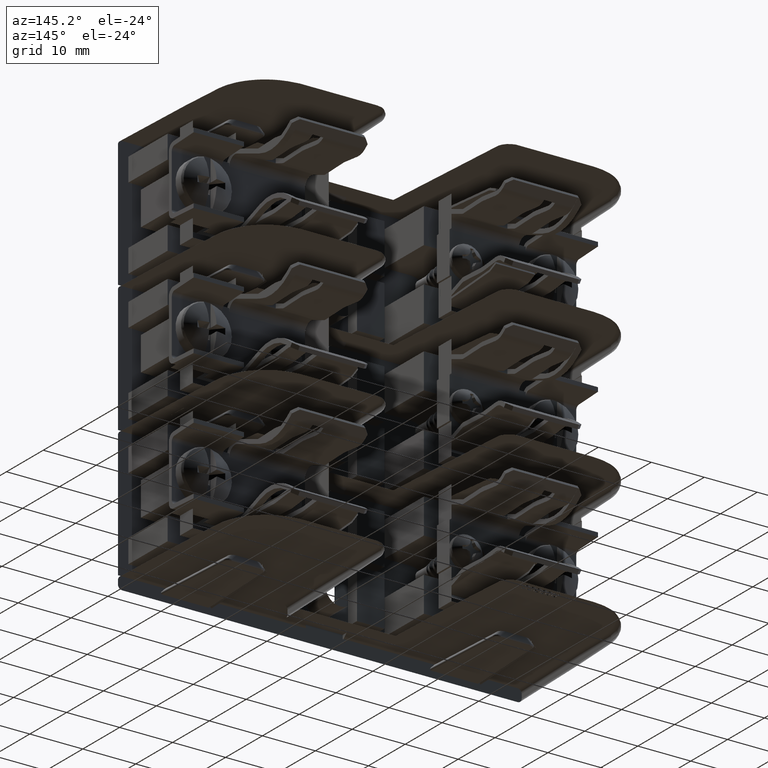
[diagram: clean part render]
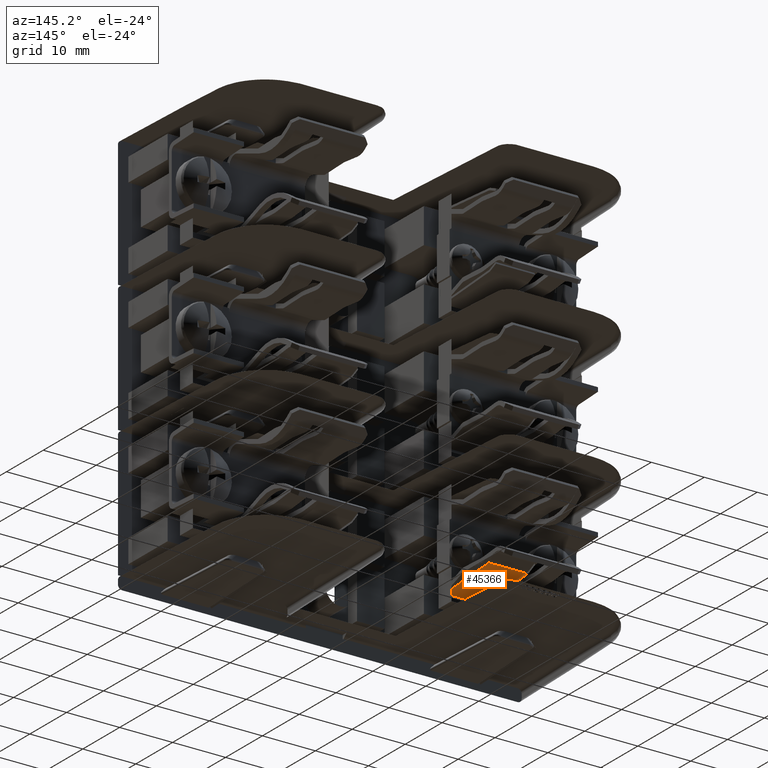
[diagram: same view with one face highlighted and labeled with its STEP entity id]
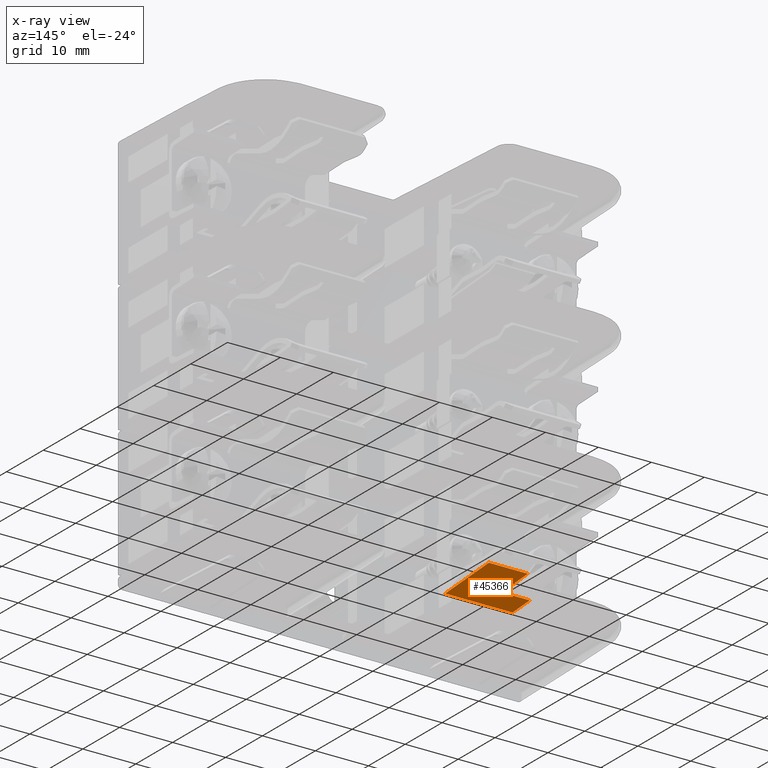
[diagram: x-ray of the same camera — body ghosted, the highlighted face saturated]
A machine part, auxiliary view. The second image highlights one B-rep face of the part: STEP entity #45366.
The next image is the same camera in x-ray: the body ghosted, the highlighted face saturated — about 4% of this face is hidden behind the body in this view.
In plain terms, the highlighted planar face has unit normal (-0, -0.0755, 0.9971).
Its self-contained STEP definition (entity closure, byte-faithful):
#68 = CARTESIAN_POINT ( 'NONE',  ( -0.8024999999999918900, 0.7873780300693515900, -0.7393027779494673000 ) ) ;
#6088 = DIRECTION ( 'NONE',  ( -1.000000000000000000, 1.313782430008698600E-015, -1.735796970343337900E-014 ) ) ;
#9934 = EDGE_LOOP ( 'NONE', ( #20222, #50743, #49256, #93711, #96966, #39250 ) ) ;
#10178 = VECTOR ( 'NONE', #30816, 39.37007874015748100 ) ;
#15941 = CARTESIAN_POINT ( 'NONE',  ( -0.5124999999999914100, 0.5491320754716975100, -0.7573350337097161100 ) ) ;
#16682 = VECTOR ( 'NONE', #73215, 39.37007874015748100 ) ;
#20157 = LINE ( 'NONE', #124417, #95751 ) ;
#20222 = ORIENTED_EDGE ( 'NONE', *, *, #98828, .T. ) ;
#20659 = VECTOR ( 'NONE', #87227, 39.37007874015748100 ) ;
#21321 = CARTESIAN_POINT ( 'NONE',  ( -1.012499999999991500, 0.6029056603773586000, -0.7532650421004143400 ) ) ;
#21584 = CARTESIAN_POINT ( 'NONE',  ( -1.012499999999991300, 0.5491320754716981800, -0.7573350337097247700 ) ) ;
#28844 = VERTEX_POINT ( 'NONE', #67801 ) ;
#30578 = LINE ( 'NONE', #81642, #103155 ) ;
#30816 = DIRECTION ( 'NONE',  ( 1.000000000000000000, -0.0000000000000000000, 1.745740669421566700E-014 ) ) ;
#31510 = DIRECTION ( 'NONE',  ( 0.0000000000000000000, -0.9971479442810424800, -0.07547169811320751700 ) ) ;
#33489 = AXIS2_PLACEMENT_3D ( 'NONE', #21584, #90624, #31510 ) ;
#34850 = VERTEX_POINT ( 'NONE', #106834 ) ;
#35796 = DIRECTION ( 'NONE',  ( -0.0000000000000000000, 0.9971479442810424800, 0.07547169811320751700 ) ) ;
#39250 = ORIENTED_EDGE ( 'NONE', *, *, #87103, .T. ) ;
#41128 = PLANE ( 'NONE',  #33489 ) ;
#42426 = FACE_OUTER_BOUND ( 'NONE', #9934, .T. ) ;
#44425 = EDGE_CURVE ( 'NONE', #53292, #28844, #98440, .T. ) ;
#44765 = EDGE_CURVE ( 'NONE', #28844, #97540, #85861, .T. ) ;
#45366 = ADVANCED_FACE ( 'NONE', ( #42426 ), #41128, .T. ) ;
#49256 = ORIENTED_EDGE ( 'NONE', *, *, #96042, .T. ) ;
#50743 = ORIENTED_EDGE ( 'NONE', *, *, #106891, .T. ) ;
#53292 = VERTEX_POINT ( 'NONE', #75746 ) ;
#56796 = LINE ( 'NONE', #15941, #83032 ) ;
#66215 = CARTESIAN_POINT ( 'NONE',  ( -1.012499999999991300, 1.069213317540827200, -0.7179713517998311800 ) ) ;
#67801 = CARTESIAN_POINT ( 'NONE',  ( -1.012499999999991500, 0.6029056603773586000, -0.7532650421004143400 ) ) ;
#68200 = CARTESIAN_POINT ( 'NONE',  ( -0.8024999999999921100, 1.069213317540826300, -0.7179713517998275200 ) ) ;
#73164 = LINE ( 'NONE', #66215, #20659 ) ;
#73215 = DIRECTION ( 'NONE',  ( 0.0000000000000000000, -0.9971479442810424800, -0.07547169811320751700 ) ) ;
#75746 = CARTESIAN_POINT ( 'NONE',  ( -1.012499999999992000, 0.7873780300693517000, -0.7393027779494710800 ) ) ;
#81642 = CARTESIAN_POINT ( 'NONE',  ( -0.8024999999999921100, 0.5491320754716978400, -0.7573350337097211100 ) ) ;
#83032 = VECTOR ( 'NONE', #35796, 39.37007874015748100 ) ;
#85861 = LINE ( 'NONE', #21321, #10178 ) ;
#87103 = EDGE_CURVE ( 'NONE', #97540, #34850, #56796, .T. ) ;
#87227 = DIRECTION ( 'NONE',  ( -1.000000000000000000, 1.313782430008698600E-015, -1.735796970343337900E-014 ) ) ;
#90624 = DIRECTION ( 'NONE',  ( -1.740761719761526200E-014, -0.07547169811320751700, 0.9971479442810424800 ) ) ;
#93711 = ORIENTED_EDGE ( 'NONE', *, *, #44425, .T. ) ;
#95751 = VECTOR ( 'NONE', #6088, 39.37007874015748100 ) ;
#96042 = EDGE_CURVE ( 'NONE', #101047, #53292, #20157, .T. ) ;
#96966 = ORIENTED_EDGE ( 'NONE', *, *, #44765, .T. ) ;
#97540 = VERTEX_POINT ( 'NONE', #112805 ) ;
#98440 = LINE ( 'NONE', #112480, #16682 ) ;
#98828 = EDGE_CURVE ( 'NONE', #34850, #107168, #73164, .T. ) ;
#101047 = VERTEX_POINT ( 'NONE', #68 ) ;
#101420 = DIRECTION ( 'NONE',  ( 0.0000000000000000000, -0.9971479442810424800, -0.07547169811320751700 ) ) ;
#103155 = VECTOR ( 'NONE', #101420, 39.37007874015748100 ) ;
#106834 = CARTESIAN_POINT ( 'NONE',  ( -0.5124999999999917400, 1.069213317540826300, -0.7179713517998225200 ) ) ;
#106891 = EDGE_CURVE ( 'NONE', #107168, #101047, #30578, .T. ) ;
#107168 = VERTEX_POINT ( 'NONE', #68200 ) ;
#112480 = CARTESIAN_POINT ( 'NONE',  ( -1.012499999999991700, 0.5491320754716981800, -0.7573350337097247700 ) ) ;
#112805 = CARTESIAN_POINT ( 'NONE',  ( -0.5124999999999913000, 0.6029056603773586000, -0.7532650421004055700 ) ) ;
#124417 = CARTESIAN_POINT ( 'NONE',  ( -1.012499999999991300, 0.7873780300693518100, -0.7393027779494710800 ) ) ;